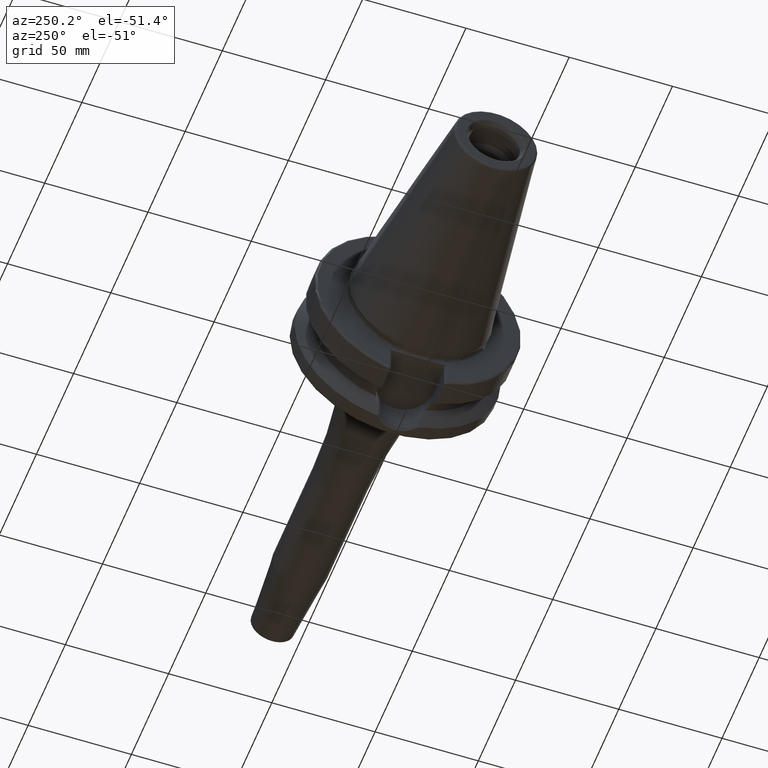
[diagram: clean part render]
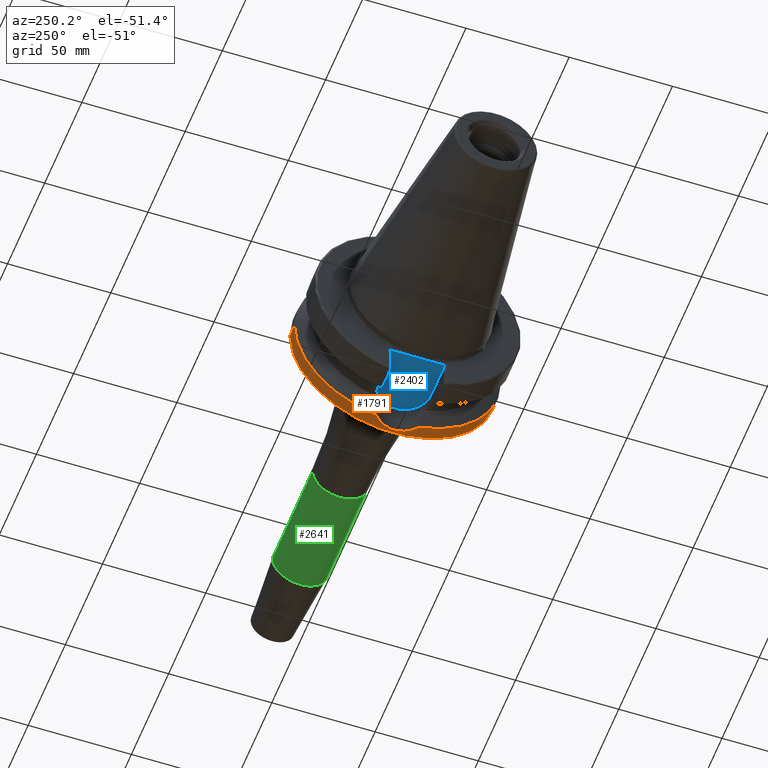
[diagram: same view with three faces highlighted in distinct colors, each labeled with its STEP entity id]
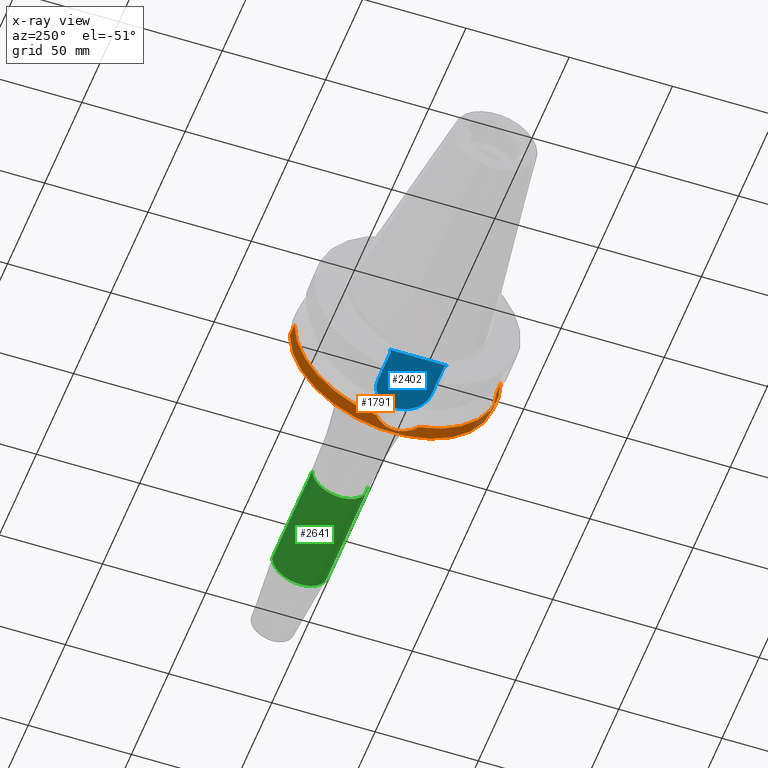
[diagram: x-ray of the same camera — body ghosted, the three highlighted faces saturated]
A machine part, auxiliary view with three faces highlighted in distinct colors.
The next image is the same camera in x-ray (body ghosted, the three faces saturated) — at least one of them is partly hidden behind the body in this view.
Their STEP definitions:

[orange] entity #1791 — the highlighted cylindrical surface (partial cylindrical patch) has radius 49.9875 mm, axis along (1, 0, 0).
#245=CARTESIAN_POINT('',(3.073066823617E1,0.E0,0.E0));
#246=DIRECTION('',(1.E0,0.E0,0.E0));
#247=DIRECTION('',(0.E0,-1.E0,0.E0));
#248=AXIS2_PLACEMENT_3D('',#245,#246,#247);
#250=DIRECTION('',(-1.E0,0.E0,0.E0));
#251=VECTOR('',#250,6.269331763825E0);
#252=CARTESIAN_POINT('',(3.7E1,-4.99875E1,0.E0));
#253=LINE('',#252,#251);
#254=CARTESIAN_POINT('',(3.7E1,0.E0,0.E0));
#255=DIRECTION('',(-1.E0,0.E0,0.E0));
#256=DIRECTION('',(0.E0,1.E0,0.E0));
#257=AXIS2_PLACEMENT_3D('',#254,#255,#256);
#259=DIRECTION('',(-1.E0,0.E0,0.E0));
#260=VECTOR('',#259,6.269331763825E0);
#261=CARTESIAN_POINT('',(3.7E1,4.99875E1,0.E0));
#262=LINE('',#261,#260);
#263=CARTESIAN_POINT('',(3.073066823617E1,0.E0,0.E0));
#264=DIRECTION('',(1.E0,0.E0,0.E0));
#265=DIRECTION('',(0.E0,2.049238320147E-1,-9.787779232657E-1));
#266=AXIS2_PLACEMENT_3D('',#263,#264,#265);
#268=CARTESIAN_POINT('',(3.073066823617E1,-1.024362896192E1,-4.892666166765E1));
#269=CARTESIAN_POINT('',(3.098270283187E1,-1.001417718341E1,-4.897470211605E1));
#270=CARTESIAN_POINT('',(3.169166615887E1,-9.319400396050E0,-4.911525921509E1));
#271=CARTESIAN_POINT('',(3.273084485343E1,-8.053271971541E0,-4.934320333096E1));
#272=CARTESIAN_POINT('',(3.373604925811E1,-6.403749543948E0,-4.958561427133E1));
#273=CARTESIAN_POINT('',(3.449815557842E1,-4.642881969044E0,-4.978242400372E1));
#274=CARTESIAN_POINT('',(3.500885094483E1,-2.803177447712E0,-4.992052659569E1));
#275=CARTESIAN_POINT('',(3.526301129761E1,-9.171953499314E-1,
-4.999110779315E1));
#276=CARTESIAN_POINT('',(3.525845754566E1,9.841660632756E-1,-4.998983236145E1));
#277=CARTESIAN_POINT('',(3.499510022915E1,2.869497687983E0,-4.991674285500E1));
#278=CARTESIAN_POINT('',(3.447534098345E1,4.706993512578E0,-4.977637056974E1));
#279=CARTESIAN_POINT('',(3.370445493838E1,6.464420400783E0,-4.957769692922E1));
#280=CARTESIAN_POINT('',(3.269088982289E1,8.109294467286E0,-4.933397361508E1));
#281=CARTESIAN_POINT('',(3.165982070584E1,9.352836362394E0,-4.910869672587E1));
#282=CARTESIAN_POINT('',(3.096569258413E1,1.002967890474E1,-4.897145777206E1));
#283=CARTESIAN_POINT('',(3.073066823617E1,1.024363005283E1,-4.892666143925E1));
#1244=CARTESIAN_POINT('',(3.073066823617E1,4.99875E1,0.E0));
#1246=VERTEX_POINT('',#1244);
#1248=CARTESIAN_POINT('',(3.073066823617E1,-4.99875E1,-1.224340637448E-14));
#1249=CARTESIAN_POINT('',(3.073066823617E1,-1.024362896192E1,
-4.892666166765E1));
#1250=VERTEX_POINT('',#1248);
#1251=VERTEX_POINT('',#1249);
#1252=CARTESIAN_POINT('',(3.7E1,4.99875E1,0.E0));
#1253=VERTEX_POINT('',#1252);
#1254=CARTESIAN_POINT('',(3.7E1,-4.99875E1,0.E0));
#1255=VERTEX_POINT('',#1254);
#1258=CARTESIAN_POINT('',(3.073066823617E1,1.024363005283E1,-4.892666143925E1));
#1259=VERTEX_POINT('',#1258);
#1772=CARTESIAN_POINT('',(-1.0879E2,0.E0,0.E0));
#1773=DIRECTION('',(1.E0,0.E0,0.E0));
#1774=DIRECTION('',(0.E0,-1.E0,0.E0));
#1775=AXIS2_PLACEMENT_3D('',#1772,#1773,#1774);
#1776=CYLINDRICAL_SURFACE('',#1775,4.99875E1);
#1778=ORIENTED_EDGE('',*,*,#1777,.F.);
#1780=ORIENTED_EDGE('',*,*,#1779,.F.);
#1782=ORIENTED_EDGE('',*,*,#1781,.F.);
#1784=ORIENTED_EDGE('',*,*,#1783,.T.);
#1786=ORIENTED_EDGE('',*,*,#1785,.F.);
#1788=ORIENTED_EDGE('',*,*,#1787,.F.);
#1789=EDGE_LOOP('',(#1778,#1780,#1782,#1784,#1786,#1788));
#1790=FACE_OUTER_BOUND('',#1789,.F.);
#1791=ADVANCED_FACE('',(#1790),#1776,.T.);
#249=CIRCLE('',#248,4.99875E1);
#258=CIRCLE('',#257,4.99875E1);
#267=CIRCLE('',#266,4.99875E1);
#284=B_SPLINE_CURVE_WITH_KNOTS('',3,(#268,#269,#270,#271,#272,#273,#274,#275,
#276,#277,#278,#279,#280,#281,#282,#283),.UNSPECIFIED.,.F.,.F.,(4,1,1,1,1,1,1,1,
1,1,1,1,1,4),(0.E0,4.360500285610E-2,1.268542736082E-1,2.101035443602E-1,
2.933528151123E-1,3.766020858644E-1,4.598513566164E-1,5.431006273685E-1,
6.263498981206E-1,7.095991688726E-1,7.928484396247E-1,8.760977103768E-1,
9.593469811288E-1,1.E0),.UNSPECIFIED.);
#1777=EDGE_CURVE('',#1250,#1251,#249,.T.);
#1779=EDGE_CURVE('',#1255,#1250,#253,.T.);
#1781=EDGE_CURVE('',#1253,#1255,#258,.T.);
#1783=EDGE_CURVE('',#1253,#1246,#262,.T.);
#1785=EDGE_CURVE('',#1259,#1246,#267,.T.);
#1787=EDGE_CURVE('',#1251,#1259,#284,.T.);

[blue] entity #2402 — the highlighted planar face has unit normal (0, 0, 1).
#116=CARTESIAN_POINT('',(3.E0,5.151759408202E0,-3.52E1));
#117=CARTESIAN_POINT('',(3.E0,4.661054534870E0,-3.52E1));
#118=CARTESIAN_POINT('',(2.985185415827E0,3.679726334622E0,-3.52E1));
#119=CARTESIAN_POINT('',(2.950323079572E0,2.207949548567E0,-3.52E1));
#120=CARTESIAN_POINT('',(2.926055980585E0,7.360772187789E-1,-3.52E1));
#121=CARTESIAN_POINT('',(2.926055295134E0,-7.360096390892E-1,-3.52E1));
#122=CARTESIAN_POINT('',(2.950321957577E0,-2.207902449886E0,-3.52E1));
#123=CARTESIAN_POINT('',(2.985185074233E0,-3.679708044781E0,-3.52E1));
#124=CARTESIAN_POINT('',(3.E0,-4.661048861242E0,-3.52E1));
#125=CARTESIAN_POINT('',(3.E0,-5.151759408202E0,-3.52E1));
#147=DIRECTION('',(7.071067811865E-1,-7.071067811865E-1,0.E0));
#148=VECTOR('',#147,1.414213562373E0);
#149=CARTESIAN_POINT('',(3.E0,1.39025E1,-3.52E1));
#150=LINE('',#149,#148);
#733=DIRECTION('',(-7.071067811865E-1,-7.071067811865E-1,0.E0));
#734=VECTOR('',#733,1.414213562373E0);
#735=CARTESIAN_POINT('',(4.E0,-1.29025E1,-3.52E1));
#736=LINE('',#735,#734);
#737=DIRECTION('',(-1.E0,0.E0,0.E0));
#738=VECTOR('',#737,1.73475E1);
#739=CARTESIAN_POINT('',(2.13475E1,1.29025E1,-3.52E1));
#740=LINE('',#739,#738);
#741=DIRECTION('',(0.E0,-1.E0,0.E0));
#742=VECTOR('',#741,8.750740591798E0);
#743=CARTESIAN_POINT('',(3.E0,1.39025E1,-3.52E1));
#744=LINE('',#743,#742);
#745=DIRECTION('',(0.E0,-1.E0,0.E0));
#746=VECTOR('',#745,8.750740591798E0);
#747=CARTESIAN_POINT('',(3.E0,-5.151759408202E0,-3.52E1));
#748=LINE('',#747,#746);
#749=DIRECTION('',(1.E0,0.E0,0.E0));
#750=VECTOR('',#749,1.73475E1);
#751=CARTESIAN_POINT('',(4.E0,-1.29025E1,-3.52E1));
#752=LINE('',#751,#750);
#753=CARTESIAN_POINT('',(2.13475E1,0.E0,-3.52E1));
#754=DIRECTION('',(0.E0,0.E0,1.E0));
#755=DIRECTION('',(0.E0,-1.E0,0.E0));
#756=AXIS2_PLACEMENT_3D('',#753,#754,#755);
#1334=CARTESIAN_POINT('',(2.13475E1,-1.29025E1,-3.52E1));
#1335=CARTESIAN_POINT('',(2.13475E1,1.29025E1,-3.52E1));
#1336=VERTEX_POINT('',#1334);
#1337=VERTEX_POINT('',#1335);
#1338=CARTESIAN_POINT('',(3.E0,5.151759408202E0,-3.52E1));
#1339=VERTEX_POINT('',#1338);
#1340=CARTESIAN_POINT('',(3.E0,-5.151759408202E0,-3.52E1));
#1341=VERTEX_POINT('',#1340);
#1387=CARTESIAN_POINT('',(4.E0,1.29025E1,-3.52E1));
#1389=VERTEX_POINT('',#1387);
#1391=CARTESIAN_POINT('',(3.E0,1.39025E1,-3.52E1));
#1393=VERTEX_POINT('',#1391);
#1397=CARTESIAN_POINT('',(3.E0,-1.39025E1,-3.52E1));
#1398=VERTEX_POINT('',#1397);
#1399=CARTESIAN_POINT('',(4.E0,-1.29025E1,-3.52E1));
#1401=VERTEX_POINT('',#1399);
#2387=CARTESIAN_POINT('',(0.E0,0.E0,-3.52E1));
#2388=DIRECTION('',(0.E0,0.E0,1.E0));
#2389=DIRECTION('',(1.E0,0.E0,0.E0));
#2390=AXIS2_PLACEMENT_3D('',#2387,#2388,#2389);
#2391=PLANE('',#2390);
#2392=ORIENTED_EDGE('',*,*,#1663,.T.);
#2393=ORIENTED_EDGE('',*,*,#1644,.F.);
#2394=ORIENTED_EDGE('',*,*,#1608,.T.);
#2395=ORIENTED_EDGE('',*,*,#1587,.T.);
#2396=ORIENTED_EDGE('',*,*,#1620,.T.);
#2397=ORIENTED_EDGE('',*,*,#2382,.F.);
#2398=ORIENTED_EDGE('',*,*,#1818,.T.);
#2399=ORIENTED_EDGE('',*,*,#1912,.T.);
#2400=EDGE_LOOP('',(#2392,#2393,#2394,#2395,#2396,#2397,#2398,#2399));
#2401=FACE_OUTER_BOUND('',#2400,.F.);
#2402=ADVANCED_FACE('',(#2401),#2391,.F.);
#126=B_SPLINE_CURVE_WITH_KNOTS('',3,(#116,#117,#118,#119,#120,#121,#122,#123,
#124,#125),.UNSPECIFIED.,.F.,.F.,(4,1,1,1,1,1,1,4),(0.E0,1.428571428571E-1,
2.857142857143E-1,4.285714285714E-1,5.714285714286E-1,7.142857142857E-1,
8.571428571429E-1,1.E0),.UNSPECIFIED.);
#757=CIRCLE('',#756,1.29025E1);
#1587=EDGE_CURVE('',#1339,#1341,#126,.T.);
#1608=EDGE_CURVE('',#1393,#1339,#744,.T.);
#1620=EDGE_CURVE('',#1341,#1398,#748,.T.);
#1644=EDGE_CURVE('',#1393,#1389,#150,.T.);
#1663=EDGE_CURVE('',#1337,#1389,#740,.T.);
#1818=EDGE_CURVE('',#1401,#1336,#752,.T.);
#1912=EDGE_CURVE('',#1336,#1337,#757,.T.);
#2382=EDGE_CURVE('',#1401,#1398,#736,.T.);

[green] entity #2641 — the highlighted cylindrical surface (edge-blend (fillet) strip) has radius 13.5 mm, axis along (1, 0, 0).
#874=CARTESIAN_POINT('',(1.08E2,0.E0,0.E0));
#875=DIRECTION('',(1.E0,0.E0,0.E0));
#876=DIRECTION('',(0.E0,-1.E0,0.E0));
#877=AXIS2_PLACEMENT_3D('',#874,#875,#876);
#879=DIRECTION('',(-1.E0,0.E0,0.E0));
#880=VECTOR('',#879,5.388138579148E1);
#881=CARTESIAN_POINT('',(1.618813857915E2,-1.35E1,0.E0));
#882=LINE('',#881,#880);
#883=CARTESIAN_POINT('',(1.618813857915E2,0.E0,0.E0));
#884=DIRECTION('',(-1.E0,0.E0,0.E0));
#885=DIRECTION('',(0.E0,1.E0,0.E0));
#886=AXIS2_PLACEMENT_3D('',#883,#884,#885);
#888=DIRECTION('',(-1.E0,0.E0,0.E0));
#889=VECTOR('',#888,5.388138579148E1);
#890=CARTESIAN_POINT('',(1.618813857915E2,1.35E1,0.E0));
#891=LINE('',#890,#889);
#1411=CARTESIAN_POINT('',(1.618813857915E2,1.35E1,0.E0));
#1412=CARTESIAN_POINT('',(1.618813857915E2,-1.35E1,0.E0));
#1413=VERTEX_POINT('',#1411);
#1414=VERTEX_POINT('',#1412);
#1431=CARTESIAN_POINT('',(1.08E2,1.35E1,0.E0));
#1432=CARTESIAN_POINT('',(1.08E2,-1.35E1,0.E0));
#1433=VERTEX_POINT('',#1431);
#1434=VERTEX_POINT('',#1432);
#2627=CARTESIAN_POINT('',(2.99E1,0.E0,0.E0));
#2628=DIRECTION('',(1.E0,0.E0,0.E0));
#2629=DIRECTION('',(0.E0,-1.E0,0.E0));
#2630=AXIS2_PLACEMENT_3D('',#2627,#2628,#2629);
#2631=CYLINDRICAL_SURFACE('',#2630,1.35E1);
#2632=ORIENTED_EDGE('',*,*,#2621,.F.);
#2634=ORIENTED_EDGE('',*,*,#2633,.F.);
#2636=ORIENTED_EDGE('',*,*,#2635,.F.);
#2638=ORIENTED_EDGE('',*,*,#2637,.T.);
#2639=EDGE_LOOP('',(#2632,#2634,#2636,#2638));
#2640=FACE_OUTER_BOUND('',#2639,.F.);
#2641=ADVANCED_FACE('',(#2640),#2631,.T.);
#878=CIRCLE('',#877,1.35E1);
#887=CIRCLE('',#886,1.35E1);
#2621=EDGE_CURVE('',#1434,#1433,#878,.T.);
#2633=EDGE_CURVE('',#1414,#1434,#882,.T.);
#2635=EDGE_CURVE('',#1413,#1414,#887,.T.);
#2637=EDGE_CURVE('',#1413,#1433,#891,.T.);